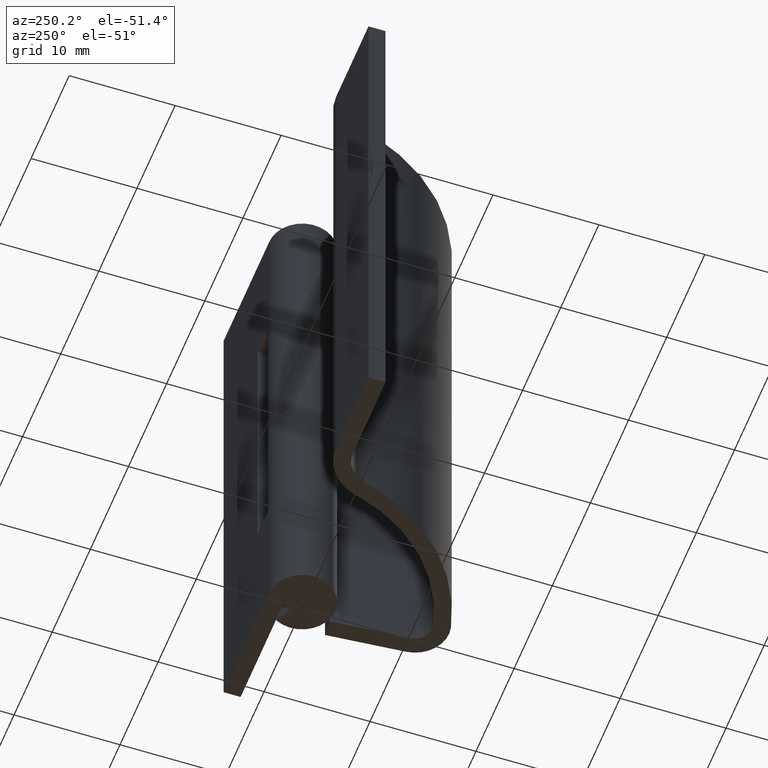
[diagram: clean part render]
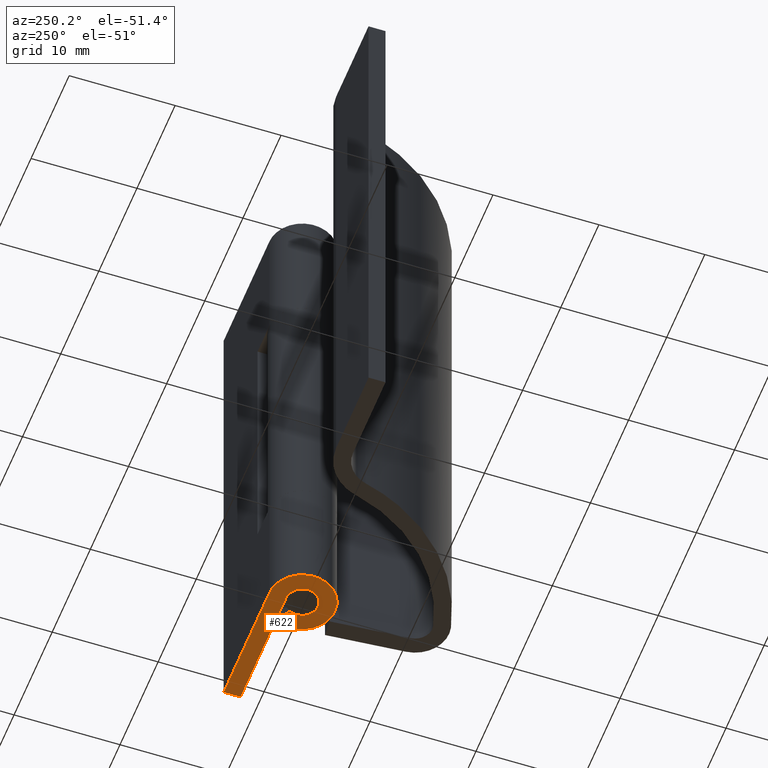
[diagram: same view with one face highlighted and labeled with its STEP entity id]
A machine part, auxiliary view. The second image highlights one B-rep face of the part: STEP entity #622.
In plain terms, the highlighted face is a freeform B-spline surface patch.
Its self-contained STEP definition (entity closure, byte-faithful):
#545=CARTESIAN_POINT('',(-3.854015722228059,-3.408860472703513,0.0));
#546=CARTESIAN_POINT('',(12.754226088953301,-3.408860472703513,0.0));
#547=CARTESIAN_POINT('',(-3.854015722228059,3.409648596006917,0.0));
#548=CARTESIAN_POINT('',(12.754226088953301,3.409648596006917,0.0));
#549=B_SPLINE_SURFACE_WITH_KNOTS('',1,1,((#545,#547),(#546,#548)),.UNSPECIFIED.,.F.,.F.,.U.,(2,2),(2,2),(0.0,16.608241811181362),(0.0,6.818509068710430),.UNSPECIFIED.);
#550=CARTESIAN_POINT('',(0.003521362805218,3.099998000000000,0.0));
#551=VERTEX_POINT('',#550);
#552=CARTESIAN_POINT('',(11.999991999999899,3.099998000000000,0.0));
#553=VERTEX_POINT('',#552);
#554=CARTESIAN_POINT('',(0.003521362805218,3.099998000000000,0.0));
#555=CARTESIAN_POINT('',(11.999991999999899,3.099998000000000,0.0));
#556=QUASI_UNIFORM_CURVE('',1,(#554,#555),.UNSPECIFIED.,.F.,.U.);
#557=EDGE_CURVE('',#551,#553,#556,.T.);
#558=ORIENTED_EDGE('',*,*,#557,.T.);
#559=CARTESIAN_POINT('',(11.999991999999899,1.500000000000000,0.0));
#560=VERTEX_POINT('',#559);
#561=CARTESIAN_POINT('',(11.999991999999899,3.099998000000000,0.0));
#562=CARTESIAN_POINT('',(11.999991999999899,1.500000000000000,0.0));
#563=QUASI_UNIFORM_CURVE('',1,(#561,#562),.UNSPECIFIED.,.F.,.U.);
#564=EDGE_CURVE('',#553,#560,#563,.T.);
#565=ORIENTED_EDGE('',*,*,#564,.T.);
#566=CARTESIAN_POINT('',(0.0,1.500000000000000,0.0));
#567=VERTEX_POINT('',#566);
#568=CARTESIAN_POINT('',(11.999991999999899,1.500000000000000,0.0));
#569=CARTESIAN_POINT('',(0.0,1.500000000000000,0.0));
#570=QUASI_UNIFORM_CURVE('',1,(#568,#569),.UNSPECIFIED.,.F.,.U.);
#571=EDGE_CURVE('',#560,#567,#570,.T.);
#572=ORIENTED_EDGE('',*,*,#571,.T.);
#573=CARTESIAN_POINT('',(1.325797621821316,0.701612903225806,0.0));
#574=VERTEX_POINT('',#573);
#575=CARTESIAN_POINT('',(1.325797621821315,0.701612903225806,0.0));
#576=CARTESIAN_POINT('',(1.859045520162959,-0.306035035134632,0.0));
#577=CARTESIAN_POINT('',(1.030933009042893,-1.089576583295441,0.0));
#578=CARTESIAN_POINT('',(0.202820497922826,-1.873118131456252,0.0));
#579=CARTESIAN_POINT('',(-0.773815431857395,-1.284994037892532,0.0));
#580=CARTESIAN_POINT('',(-1.750451361637613,-0.696869944328814,0.0));
#581=CARTESIAN_POINT('',(-1.445249296287461,0.401565027835592,0.0));
#582=CARTESIAN_POINT('',(-1.140047230937308,1.500000000000000,0.0));
#583=CARTESIAN_POINT('',(0.0,1.500000000000000,0.0));
#591=(BOUNDED_CURVE()B_SPLINE_CURVE(2,(#575,#576,#577,#578,#579,#580,#581,#582,#583),.UNSPECIFIED.,.F.,.U.)B_SPLINE_CURVE_WITH_KNOTS((3,2,2,2,3),(0.0,0.250000000000000,0.500000000000000,0.750000000000000,1.0),.UNSPECIFIED.)CURVE()GEOMETRIC_REPRESENTATION_ITEM()RATIONAL_B_SPLINE_CURVE((1.0,0.796150117301085,1.0,0.796150117301085,1.0,0.796150117301085,1.0,0.796150117301085,1.0))REPRESENTATION_ITEM(''));
#592=EDGE_CURVE('',#574,#567,#591,.T.);
#593=ORIENTED_EDGE('',*,*,#592,.F.);
#594=CARTESIAN_POINT('',(2.739981751764050,1.450000000000000,0.0));
#595=VERTEX_POINT('',#594);
#596=CARTESIAN_POINT('',(1.325797621821316,0.701612903225806,0.0));
#597=CARTESIAN_POINT('',(2.739981751764050,1.450000000000000,0.0));
#598=QUASI_UNIFORM_CURVE('',1,(#596,#597),.UNSPECIFIED.,.F.,.U.);
#599=EDGE_CURVE('',#574,#595,#598,.T.);
#600=ORIENTED_EDGE('',*,*,#599,.T.);
#601=CARTESIAN_POINT('',(2.739981751764050,1.450000000000002,0.0));
#602=CARTESIAN_POINT('',(3.842352259281344,-0.633086258124314,0.0));
#603=CARTESIAN_POINT('',(2.129955333572986,-2.252396562993291,0.0));
#604=CARTESIAN_POINT('',(0.417558407864627,-3.871706867862268,0.0));
#605=CARTESIAN_POINT('',(-1.600726611546711,-2.654745621540072,0.0));
#606=CARTESIAN_POINT('',(-3.619011630958046,-1.437784375217877,0.0));
#607=CARTESIAN_POINT('',(-2.986140433580759,0.832445380150624,0.0));
#608=CARTESIAN_POINT('',(-2.353269236203469,3.102675135519129,0.0));
#609=CARTESIAN_POINT('',(0.003521362805217,3.099997999999999,0.0));
#617=(BOUNDED_CURVE()B_SPLINE_CURVE(2,(#601,#602,#603,#604,#605,#606,#607,#608,#609),.UNSPECIFIED.,.F.,.U.)B_SPLINE_CURVE_WITH_KNOTS((3,2,2,2,3),(0.0,0.250000000000000,0.500000000000000,0.750000000000000,1.0),.UNSPECIFIED.)CURVE()GEOMETRIC_REPRESENTATION_ITEM()RATIONAL_B_SPLINE_CURVE((1.0,0.796064190964140,1.0,0.796064190964140,1.0,0.796064190964140,1.0,0.796064190964140,1.0))REPRESENTATION_ITEM(''));
#618=EDGE_CURVE('',#595,#551,#617,.T.);
#619=ORIENTED_EDGE('',*,*,#618,.T.);
#620=EDGE_LOOP('',(#558,#565,#572,#593,#600,#619));
#621=FACE_OUTER_BOUND('',#620,.T.);
#622=ADVANCED_FACE('',(#621),#549,.F.);